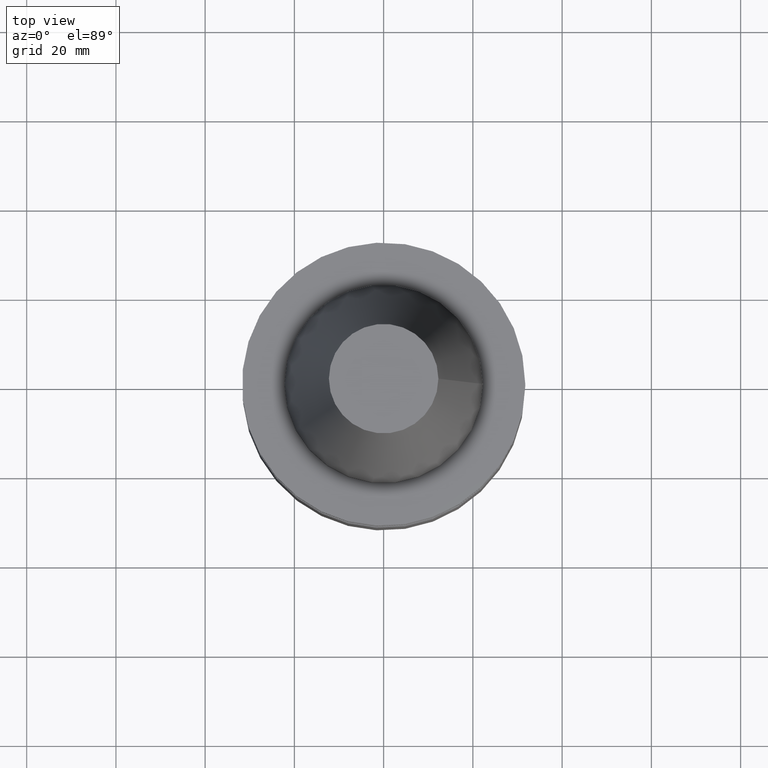
[diagram: clean part render]
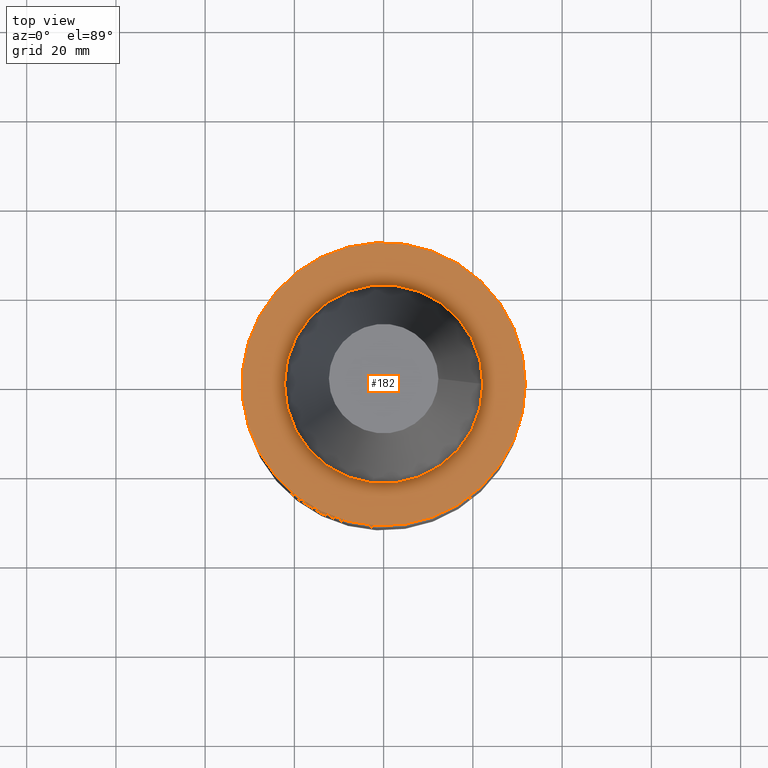
[diagram: same view with one face highlighted and labeled with its STEP entity id]
A machine part, top view. The second image highlights one B-rep face of the part: STEP entity #182.
In plain terms, the highlighted planar face has unit normal (0, 0, -1).
Its self-contained STEP definition (entity closure, byte-faithful):
#12 = AXIS2_PLACEMENT_3D ( 'NONE', #317, #47, #347 ) ;
#22 = DIRECTION ( 'NONE',  ( 0.000000000000000000, 0.000000000000000000, -1.000000000000000000 ) ) ;
#25 = CARTESIAN_POINT ( 'NONE',  ( 22.22500000000000142, 0.000000000000000000, -3.174999999999997158 ) ) ;
#47 = DIRECTION ( 'NONE',  ( -0.000000000000000000, -0.000000000000000000, 1.000000000000000000 ) ) ;
#95 = EDGE_CURVE ( 'NONE', #293, #293, #354, .T. ) ;
#96 = DIRECTION ( 'NONE',  ( 1.000000000000000000, 0.000000000000000000, 0.000000000000000000 ) ) ;
#110 = VERTEX_POINT ( 'NONE', #168 ) ;
#119 = CIRCLE ( 'NONE', #12, 31.75000000000000000 ) ;
#126 = ORIENTED_EDGE ( 'NONE', *, *, #211, .T. ) ;
#153 = DIRECTION ( 'NONE',  ( -0.000000000000000000, -0.000000000000000000, 1.000000000000000000 ) ) ;
#168 = CARTESIAN_POINT ( 'NONE',  ( 31.75000000000000000, 0.000000000000000000, -3.174999999999997158 ) ) ;
#182 = ADVANCED_FACE ( 'NONE', ( #253, #319 ), #316, .F. ) ;
#205 = AXIS2_PLACEMENT_3D ( 'NONE', #223, #22, #225 ) ;
#211 = EDGE_CURVE ( 'NONE', #110, #110, #119, .T. ) ;
#218 = CARTESIAN_POINT ( 'NONE',  ( 0.000000000000000000, 0.000000000000000000, -3.174999999999997158 ) ) ;
#223 = CARTESIAN_POINT ( 'NONE',  ( 0.000000000000000000, 31.75000000000000000, -3.174999999999993605 ) ) ;
#225 = DIRECTION ( 'NONE',  ( -1.000000000000000000, 0.000000000000000000, -0.000000000000000000 ) ) ;
#248 = ORIENTED_EDGE ( 'NONE', *, *, #95, .F. ) ;
#253 = FACE_BOUND ( 'NONE', #362, .T. ) ;
#293 = VERTEX_POINT ( 'NONE', #25 ) ;
#316 = PLANE ( 'NONE',  #205 ) ;
#317 = CARTESIAN_POINT ( 'NONE',  ( 0.000000000000000000, 0.000000000000000000, -3.174999999999997158 ) ) ;
#319 = FACE_OUTER_BOUND ( 'NONE', #376, .T. ) ;
#330 = AXIS2_PLACEMENT_3D ( 'NONE', #218, #153, #96 ) ;
#347 = DIRECTION ( 'NONE',  ( 1.000000000000000000, 0.000000000000000000, 0.000000000000000000 ) ) ;
#354 = CIRCLE ( 'NONE', #330, 22.22500000000000142 ) ;
#362 = EDGE_LOOP ( 'NONE', ( #248 ) ) ;
#376 = EDGE_LOOP ( 'NONE', ( #126 ) ) ;